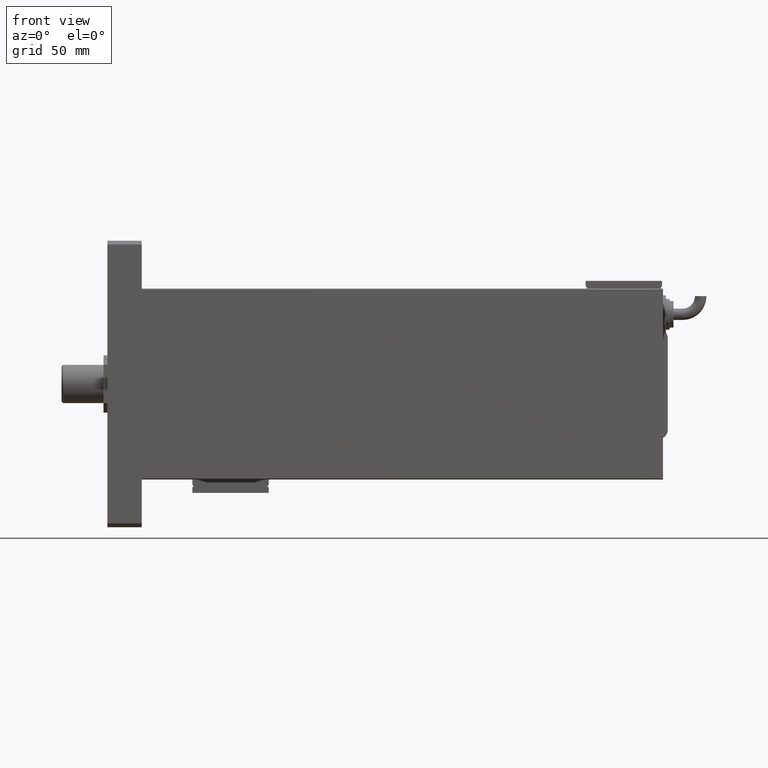
[diagram: clean part render]
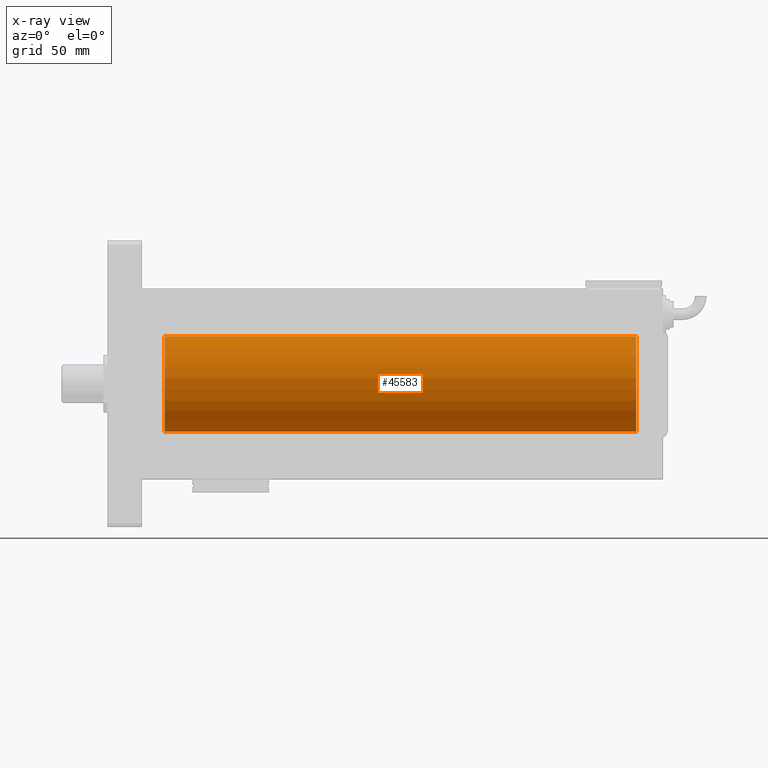
[diagram: x-ray — body ghosted, one internal face saturated and labeled with its STEP entity id]
A machine part, front view, then the same camera in x-ray: the body is ghosted and one INTERNAL B-rep face — a face not visible from any outside direction — is saturated and labeled: STEP entity #45583.
In plain terms, the highlighted cylindrical surface (partial cylindrical patch) has radius 25 mm, axis along (-1, -0, -0).
Its self-contained STEP definition (entity closure, byte-faithful):
#2131 = CARTESIAN_POINT ( 'NONE',  ( 31.50000000000000000, 3.061616978460191625E-15, -25.00000000000000000 ) ) ;
#2384 = VERTEX_POINT ( 'NONE', #19648 ) ;
#2701 = CARTESIAN_POINT ( 'NONE',  ( 257.3721596940860650, -0.8058335233485539595, -24.98746277938382931 ) ) ;
#3476 = ORIENTED_EDGE ( 'NONE', *, *, #59164, .T. ) ;
#5081 = B_SPLINE_CURVE_WITH_KNOTS ( 'NONE', 3,
 ( #2131, #21422, #40727, #16667, #55251, #31238, #50519, #7187, #26478, #45774, #51126, #37844, #17292, #41971, #7805, #37528, #18534, #37221, #46083, #61224, #23296, #13151, #61539, #57110, #27096, #56483, #17912, #41662, #46710, #31544, #60915, #31849 ),
 .UNSPECIFIED., .F., .F.,
 ( 4, 2, 2, 2, 2, 2, 2, 2, 2, 2, 2, 2, 2, 2, 2, 4 ),
 ( 0.007821024441662299820, 0.008309723826317907958, 0.008798423210973517830, 0.009287122595629122498, 0.009775821980284727167, 0.01026452136494033184, 0.01075322074959593650, 0.01124192013425154291, 0.01173061951890714757, 0.01221931890356275051, 0.01270801828821835691, 0.01319671767287396158, 0.01368541705752956625, 0.01417411644218517092, 0.01466281582684077732, 0.01564021459615199186 ),
 .UNSPECIFIED. ) ;
#5285 = ORIENTED_EDGE ( 'NONE', *, *, #52035, .T. ) ;
#6829 = CARTESIAN_POINT ( 'NONE',  ( 257.5000000000001137, -0.1631750940176236453, -25.00000000000001066 ) ) ;
#7187 = CARTESIAN_POINT ( 'NONE',  ( 30.98749815834398902, -1.525407911884361312, -24.95379469572362652 ) ) ;
#7271 = DIRECTION ( 'NONE',  ( -1.000000000000000000, -0.000000000000000000, -0.000000000000000000 ) ) ;
#7805 = CARTESIAN_POINT ( 'NONE',  ( 29.64904390169096970, -2.419770561643905804, -24.88263927071751169 ) ) ;
#7891 = CARTESIAN_POINT ( 'NONE',  ( 259.0000000000000000, 0.000000000000000000, 25.00000000000000000 ) ) ;
#7965 = DIRECTION ( 'NONE',  ( -1.000000000000000000, 0.000000000000000000, 0.000000000000000000 ) ) ;
#8059 = CARTESIAN_POINT ( 'NONE',  ( 252.5000000000000000, -4.337149129868305233E-14, -25.00000000000000000 ) ) ;
#8372 = CARTESIAN_POINT ( 'NONE',  ( 253.7491597607595111, -2.170728182476780788, -24.90574631553725027 ) ) ;
#8458 = VERTEX_POINT ( 'NONE', #49278 ) ;
#8690 = CARTESIAN_POINT ( 'NONE',  ( 255.8078834240581330, -2.371528299825781616, -24.88734287464370354 ) ) ;
#9014 = CARTESIAN_POINT ( 'NONE',  ( 255.1670649517807590, -2.499872792855129422, -24.87469871246082320 ) ) ;
#9620 = EDGE_CURVE ( 'NONE', #31215, #8458, #40263, .T. ) ;
#11114 = VERTEX_POINT ( 'NONE', #20180 ) ;
#13104 = CARTESIAN_POINT ( 'NONE',  ( 253.1181404585135510, -1.653834020452977782, -24.94550385189584674 ) ) ;
#13151 = CARTESIAN_POINT ( 'NONE',  ( 27.89276154161591137, -2.247417070759893498, -24.89885693081945917 ) ) ;
#13188 = CARTESIAN_POINT ( 'NONE',  ( 259.0000000000000000, 3.061616997868383043E-15, -25.00000000000000000 ) ) ;
#13626 = CARTESIAN_POINT ( 'NONE',  ( 259.0000000000000000, 0.000000000000000000, 0.000000000000000000 ) ) ;
#13950 = VERTEX_POINT ( 'NONE', #19857 ) ;
#14666 = EDGE_CURVE ( 'NONE', #11114, #58435, #40814, .T. ) ;
#14703 = ORIENTED_EDGE ( 'NONE', *, *, #9620, .T. ) ;
#15569 = CARTESIAN_POINT ( 'NONE',  ( 259.0000000000000000, 3.061616997868383043E-15, -25.00000000000000000 ) ) ;
#16667 = CARTESIAN_POINT ( 'NONE',  ( 31.42014909220930363, -0.6480119923854200659, -24.99212088949392196 ) ) ;
#16795 = B_SPLINE_CURVE_WITH_KNOTS ( 'NONE', 3,
 ( #46028, #6829, #49539, #44801, #2701, #21991, #20744, #41301, #60561, #17235, #36541, #40056, #30247, #8690, #32112, #37173, #9014, #61174, #17864, #27977, #61806, #37479, #8372, #51390, #60868, #13104, #18482, #62122, #41609, #32732, #23560, #8059 ),
 .UNSPECIFIED., .F., .F.,
 ( 4, 2, 2, 2, 2, 2, 2, 2, 2, 2, 2, 2, 2, 2, 2, 4 ),
 ( 0.007821024441662358800, 0.008309723826317966938, 0.008798423210973573341, 0.009287122595629181479, 0.009775821980284789617, 0.01026452136494039775, 0.01075322074959600589, 0.01124192013425161403, 0.01173061951890722217, 0.01221931890356283031, 0.01270801828821843844, 0.01319671767287404658, 0.01368541705752965472, 0.01417411644218526286, 0.01466281582684087273, 0.01564021459615215145 ),
 .UNSPECIFIED. ) ;
#16929 = DIRECTION ( 'NONE',  ( -1.000000000000000000, -0.000000000000000000, -0.000000000000000000 ) ) ;
#17235 = CARTESIAN_POINT ( 'NONE',  ( 256.6538333614934118, -1.881857718844739624, -24.92933960374833902 ) ) ;
#17292 = CARTESIAN_POINT ( 'NONE',  ( 30.11036796508864910, -2.245863995402895164, -24.89899750494197406 ) ) ;
#17316 = EDGE_CURVE ( 'NONE', #8458, #13950, #5081, .T. ) ;
#17858 = FACE_OUTER_BOUND ( 'NONE', #46445, .T. ) ;
#17864 = CARTESIAN_POINT ( 'NONE',  ( 254.6740342996052675, -2.484007091859810501, -24.87630842367762440 ) ) ;
#17912 = CARTESIAN_POINT ( 'NONE',  ( 27.01461966282905180, -1.528152964861308138, -24.95362559291378801 ) ) ;
#18482 = CARTESIAN_POINT ( 'NONE',  ( 253.0146196628290056, -1.528152964861355434, -24.95362559291378801 ) ) ;
#18534 = CARTESIAN_POINT ( 'NONE',  ( 29.16706495178060621, -2.499872792855077464, -24.87469871246082320 ) ) ;
#19066 = CIRCLE ( 'NONE', #45355, 25.00000000000000000 ) ;
#19648 = CARTESIAN_POINT ( 'NONE',  ( 257.5000000000000000, 3.061616978452697446E-15, -25.00000000000000000 ) ) ;
#19857 = CARTESIAN_POINT ( 'NONE',  ( 26.50000000000000355, -4.113702575029848227E-15, -25.00000000000000000 ) ) ;
#19905 = CARTESIAN_POINT ( 'NONE',  ( 12.00000000000001066, 3.061616997868383043E-15, -25.00000000000000000 ) ) ;
#20180 = CARTESIAN_POINT ( 'NONE',  ( 259.0000000000000000, 0.000000000000000000, 25.00000000000000000 ) ) ;
#20744 = CARTESIAN_POINT ( 'NONE',  ( 257.1701129028092510, -1.252049606094359779, -24.96900299967627035 ) ) ;
#21422 = CARTESIAN_POINT ( 'NONE',  ( 31.50000000000000000, -0.1631750940176180942, -25.00000000000001066 ) ) ;
#21991 = CARTESIAN_POINT ( 'NONE',  ( 257.2476025101955202, -1.106703319666894947, -24.97594585958023217 ) ) ;
#22629 = EDGE_CURVE ( 'NONE', #57075, #11114, #22831, .T. ) ;
#22831 = CIRCLE ( 'NONE', #30921, 25.00000000000000000 ) ;
#23296 = CARTESIAN_POINT ( 'NONE',  ( 28.19564339083698457, -2.372734907014171224, -24.88722742718433523 ) ) ;
#23560 = CARTESIAN_POINT ( 'NONE',  ( 252.4999999999999432, -0.3305063766664071978, -24.99999999999999645 ) ) ;
#24691 = VECTOR ( 'NONE', #7271, 1000.000000000000000 ) ;
#26478 = CARTESIAN_POINT ( 'NONE',  ( 30.88412382786470900, -1.651251241585097063, -24.94567559498348075 ) ) ;
#26909 = DIRECTION ( 'NONE',  ( 0.000000000000000000, 0.000000000000000000, 1.000000000000000000 ) ) ;
#27096 = CARTESIAN_POINT ( 'NONE',  ( 27.34878866440888245, -1.884161199660614017, -24.92916496727982434 ) ) ;
#27977 = CARTESIAN_POINT ( 'NONE',  ( 254.3543933385136597, -2.420689345803805903, -24.88254961038872892 ) ) ;
#28619 = ORIENTED_EDGE ( 'NONE', *, *, #34608, .T. ) ;
#28757 = ORIENTED_EDGE ( 'NONE', *, *, #17316, .T. ) ;
#30247 = CARTESIAN_POINT ( 'NONE',  ( 256.1103679650888125, -2.245863995402927582, -24.89899750494196695 ) ) ;
#30921 = AXIS2_PLACEMENT_3D ( 'NONE', #13626, #7965, #32947 ) ;
#31215 = VERTEX_POINT ( 'NONE', #51642 ) ;
#31238 = CARTESIAN_POINT ( 'NONE',  ( 31.24760251019550950, -1.106703319666878071, -24.97594585958023572 ) ) ;
#31544 = CARTESIAN_POINT ( 'NONE',  ( 26.56650644760252789, -0.6588655613945878509, -24.99312727339970763 ) ) ;
#31849 = CARTESIAN_POINT ( 'NONE',  ( 26.50000000000000355, -4.113702575029848227E-15, -25.00000000000000000 ) ) ;
#32112 = CARTESIAN_POINT ( 'NONE',  ( 255.6490439016910159, -2.419770561643941775, -24.88263927071750814 ) ) ;
#32732 = CARTESIAN_POINT ( 'NONE',  ( 252.5665064476024781, -0.6588655613946440281, -24.99312727339970053 ) ) ;
#32819 = DIRECTION ( 'NONE',  ( -1.000000000000000000, -0.000000000000000000, -0.000000000000000000 ) ) ;
#32947 = DIRECTION ( 'NONE',  ( 0.000000000000000000, 0.000000000000000000, 1.000000000000000000 ) ) ;
#34608 = EDGE_CURVE ( 'NONE', #60654, #58435, #19066, .T. ) ;
#36541 = CARTESIAN_POINT ( 'NONE',  ( 256.5253618224309662, -1.987446652080274268, -24.92104239223420947 ) ) ;
#37173 = CARTESIAN_POINT ( 'NONE',  ( 255.3294768011427038, -2.483544361357311825, -24.87635491893501083 ) ) ;
#37221 = CARTESIAN_POINT ( 'NONE',  ( 28.83676410361457343, -2.500125740978191846, -24.87467329022545925 ) ) ;
#37479 = CARTESIAN_POINT ( 'NONE',  ( 253.8927615416158972, -2.247417070759944568, -24.89885693081944851 ) ) ;
#37528 = CARTESIAN_POINT ( 'NONE',  ( 29.32947680114268252, -2.483544361357266084, -24.87635491893501083 ) ) ;
#37844 = CARTESIAN_POINT ( 'NONE',  ( 30.25383195424502958, -2.169003991399867104, -24.90589728951138326 ) ) ;
#39010 = LINE ( 'NONE', #15569, #40828 ) ;
#40056 = CARTESIAN_POINT ( 'NONE',  ( 256.2538319542450154, -2.169003991399887976, -24.90589728951137971 ) ) ;
#40263 = LINE ( 'NONE', #40570, #61792 ) ;
#40570 = CARTESIAN_POINT ( 'NONE',  ( 259.0000000000000000, 3.061616997868383043E-15, -25.00000000000000000 ) ) ;
#40727 = CARTESIAN_POINT ( 'NONE',  ( 31.48417840057656747, -0.3254210271412200650, -24.99840249400844527 ) ) ;
#40814 = LINE ( 'NONE', #7891, #24691 ) ;
#40828 = VECTOR ( 'NONE', #58287, 1000.000000000000000 ) ;
#41301 = CARTESIAN_POINT ( 'NONE',  ( 256.9874981583440672, -1.525407911884391288, -24.95379469572361586 ) ) ;
#41597 = AXIS2_PLACEMENT_3D ( 'NONE', #46657, #16929, #46024 ) ;
#41605 = CYLINDRICAL_SURFACE ( 'NONE', #41597, 25.00000000000000000 ) ;
#41609 = CARTESIAN_POINT ( 'NONE',  ( 252.7539362090593329, -1.109818057797474555, -24.97580694515541921 ) ) ;
#41662 = CARTESIAN_POINT ( 'NONE',  ( 26.83172358506043054, -1.255214705003178555, -24.96884293994578030 ) ) ;
#41790 = DIRECTION ( 'NONE',  ( -1.000000000000000000, 0.000000000000000000, 0.000000000000000000 ) ) ;
#41971 = CARTESIAN_POINT ( 'NONE',  ( 29.80788342405805835, -2.371528299825741648, -24.88734287464370709 ) ) ;
#42034 = VECTOR ( 'NONE', #32819, 1000.000000000000000 ) ;
#44801 = CARTESIAN_POINT ( 'NONE',  ( 257.4201490922092717, -0.6480119923854290587, -24.99212088949389354 ) ) ;
#45355 = AXIS2_PLACEMENT_3D ( 'NONE', #55680, #41790, #26909 ) ;
#45583 = ADVANCED_FACE ( 'NONE', ( #17858 ), #41605, .F. ) ;
#45774 = CARTESIAN_POINT ( 'NONE',  ( 30.65383336149337978, -1.881857718844712091, -24.92933960374833546 ) ) ;
#46024 = DIRECTION ( 'NONE',  ( 0.000000000000000000, 0.000000000000000000, 1.000000000000000000 ) ) ;
#46028 = CARTESIAN_POINT ( 'NONE',  ( 257.5000000000000000, 3.061616978452697446E-15, -25.00000000000000000 ) ) ;
#46083 = CARTESIAN_POINT ( 'NONE',  ( 28.67403429960540606, -2.484007091859761207, -24.87630842367763506 ) ) ;
#46445 = EDGE_LOOP ( 'NONE', ( #49447, #3476, #5285, #14703, #28757, #49811, #28619, #53004 ) ) ;
#46657 = CARTESIAN_POINT ( 'NONE',  ( 259.0000000000000000, 0.000000000000000000, 0.000000000000000000 ) ) ;
#46710 = CARTESIAN_POINT ( 'NONE',  ( 26.75393620905933290, -1.109818057797416158, -24.97580694515542277 ) ) ;
#49278 = CARTESIAN_POINT ( 'NONE',  ( 31.50000000000000000, 3.061616978460191625E-15, -25.00000000000000000 ) ) ;
#49447 = ORIENTED_EDGE ( 'NONE', *, *, #22629, .F. ) ;
#49539 = CARTESIAN_POINT ( 'NONE',  ( 257.4841784005766954, -0.3254210271412252831, -24.99840249400845238 ) ) ;
#49811 = ORIENTED_EDGE ( 'NONE', *, *, #50183, .T. ) ;
#50183 = EDGE_CURVE ( 'NONE', #13950, #60654, #39010, .T. ) ;
#50519 = CARTESIAN_POINT ( 'NONE',  ( 31.17011290280925451, -1.252049606094333578, -24.96900299967627745 ) ) ;
#51126 = CARTESIAN_POINT ( 'NONE',  ( 30.52536182243081342, -1.987446652080259391, -24.92104239223420592 ) ) ;
#51390 = CARTESIAN_POINT ( 'NONE',  ( 253.4774322565982345, -1.989585286700310540, -24.92087098724766037 ) ) ;
#51642 = CARTESIAN_POINT ( 'NONE',  ( 252.5000000000000000, -4.337149129868305233E-14, -25.00000000000000000 ) ) ;
#51778 = LINE ( 'NONE', #13188, #42034 ) ;
#52035 = EDGE_CURVE ( 'NONE', #2384, #31215, #16795, .T. ) ;
#53004 = ORIENTED_EDGE ( 'NONE', *, *, #14666, .F. ) ;
#55251 = CARTESIAN_POINT ( 'NONE',  ( 31.37215969408607563, -0.8058335233485418581, -24.98746277938382931 ) ) ;
#55680 = CARTESIAN_POINT ( 'NONE',  ( 12.00000000000001066, 0.000000000000000000, 0.000000000000000000 ) ) ;
#56483 = CARTESIAN_POINT ( 'NONE',  ( 27.11814045851354038, -1.653834020452936038, -24.94550385189584674 ) ) ;
#57075 = VERTEX_POINT ( 'NONE', #58411 ) ;
#57110 = CARTESIAN_POINT ( 'NONE',  ( 27.47743225659810307, -1.989585286700244149, -24.92087098724765681 ) ) ;
#57135 = CARTESIAN_POINT ( 'NONE',  ( 12.00000000000001066, 0.000000000000000000, 25.00000000000000000 ) ) ;
#58287 = DIRECTION ( 'NONE',  ( -1.000000000000000000, -0.000000000000000000, -0.000000000000000000 ) ) ;
#58411 = CARTESIAN_POINT ( 'NONE',  ( 259.0000000000000000, 3.061616997868383043E-15, -25.00000000000000000 ) ) ;
#58435 = VERTEX_POINT ( 'NONE', #57135 ) ;
#59164 = EDGE_CURVE ( 'NONE', #57075, #2384, #51778, .T. ) ;
#59838 = DIRECTION ( 'NONE',  ( -1.000000000000000000, -0.000000000000000000, -0.000000000000000000 ) ) ;
#60561 = CARTESIAN_POINT ( 'NONE',  ( 256.8841238278648120, -1.651251241585120377, -24.94567559498348430 ) ) ;
#60654 = VERTEX_POINT ( 'NONE', #19905 ) ;
#60868 = CARTESIAN_POINT ( 'NONE',  ( 253.3487886644088576, -1.884161199660660646, -24.92916496727982079 ) ) ;
#60915 = CARTESIAN_POINT ( 'NONE',  ( 26.50000000000000000, -0.3305063766663763336, -25.00000000000000355 ) ) ;
#61174 = CARTESIAN_POINT ( 'NONE',  ( 254.8367641036144562, -2.500125740978243805, -24.87467329022544504 ) ) ;
#61224 = CARTESIAN_POINT ( 'NONE',  ( 28.35439333851368460, -2.420689345803756165, -24.88254961038873958 ) ) ;
#61539 = CARTESIAN_POINT ( 'NONE',  ( 27.74915976075945068, -2.170728182476717283, -24.90574631553725027 ) ) ;
#61792 = VECTOR ( 'NONE', #59838, 1000.000000000000000 ) ;
#61806 = CARTESIAN_POINT ( 'NONE',  ( 254.1956433908370059, -2.372734907014222738, -24.88722742718432812 ) ) ;
#62122 = CARTESIAN_POINT ( 'NONE',  ( 252.8317235850603879, -1.255214705003223408, -24.96884293994578030 ) ) ;